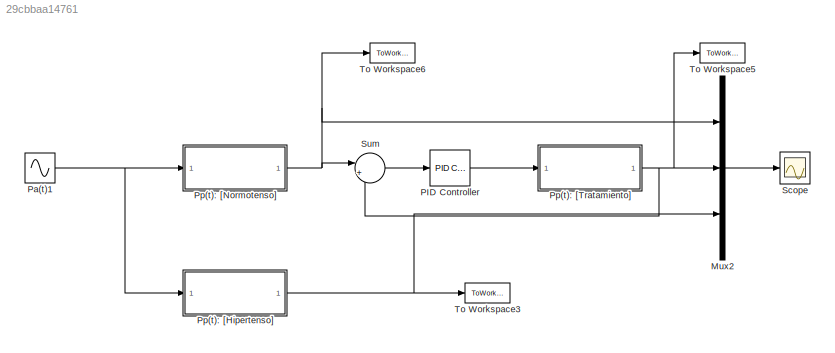
MODEL slx_29cbbaa14761
KIND model
CONFIG AbsTol = auto
CONFIG EnableMultiTasking = off
CONFIG FixedStep = auto
CONFIG MaxStep = auto
CONFIG MinStep = auto
CONFIG RelTol = 1e-3
CONFIG SampleTimeConstraint = Unconstrained
CONFIG SolverName = ode15s
CONFIG StartTime = 0.0
CONFIG StopTime = 15
BLOCK [Mux] Mux2
  DisplayOption = bar
  Inputs = 3
BLOCK [Reference] PID Controller  REF=slpidlib/PID Controller
  LibrarySourceBlock = simulink/Continuous/PID Controller
  SourceBlock = slpidlib/PID Controller
  SourceType = PID 1dof
BLOCK [Sin] Pa(t)1
  Bias = 0.8
  Frequency = (2*pi)*(95/60)
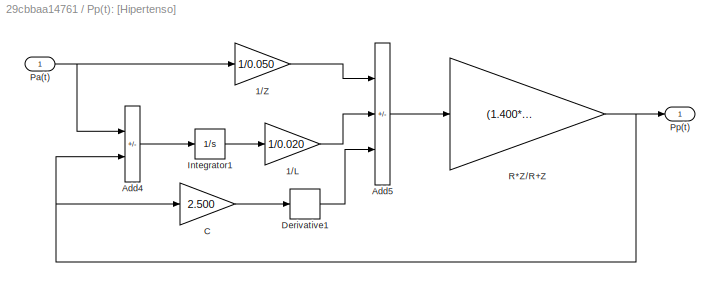
BLOCK [SubSystem] Pp(t): [Hipertenso]
BLOCK [Gain] Pp(t): [Hipertenso]/1//L
  Gain = 1/0.020
BLOCK [Gain] Pp(t): [Hipertenso]/1//Z
  Gain = 1/0.050
BLOCK [Sum] Pp(t): [Hipertenso]/Add4
  IconShape = rectangular
  Inputs = +-
BLOCK [Sum] Pp(t): [Hipertenso]/Add5
  IconShape = rectangular
  Inputs = ++-
BLOCK [Gain] Pp(t): [Hipertenso]/C
  Gain = 2.500
BLOCK [Derivative] Pp(t): [Hipertenso]/Derivative1
BLOCK [Integrator] Pp(t): [Hipertenso]/Integrator1
BLOCK [Inport] Pp(t): [Hipertenso]/Pa(t)
BLOCK [Outport] Pp(t): [Hipertenso]/Pp(t)
  VectorParamsAs1DForOutWhenUnconnected = off
BLOCK [Gain] Pp(t): [Hipertenso]/R*Z//R+Z
  Gain = (1.400*0.050)/(1.400+0.050)
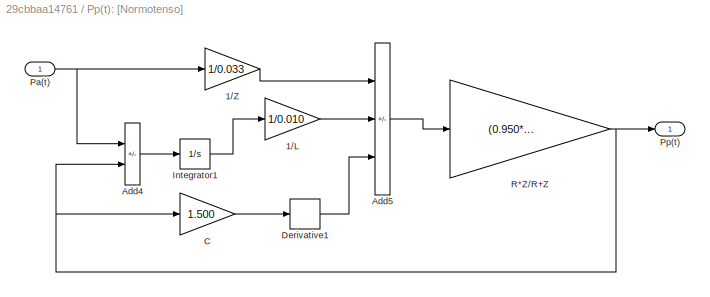
BLOCK [SubSystem] Pp(t): [Normotenso]
BLOCK [Gain] Pp(t): [Normotenso]/1//L
  Gain = 1/0.010
BLOCK [Gain] Pp(t): [Normotenso]/1//Z
  Gain = 1/0.033
BLOCK [Sum] Pp(t): [Normotenso]/Add4
  IconShape = rectangular
  Inputs = +-
BLOCK [Sum] Pp(t): [Normotenso]/Add5
  IconShape = rectangular
  Inputs = ++-
BLOCK [Gain] Pp(t): [Normotenso]/C
  Gain = 1.500
BLOCK [Derivative] Pp(t): [Normotenso]/Derivative1
BLOCK [Integrator] Pp(t): [Normotenso]/Integrator1
BLOCK [Inport] Pp(t): [Normotenso]/Pa(t)
BLOCK [Outport] Pp(t): [Normotenso]/Pp(t)
  VectorParamsAs1DForOutWhenUnconnected = off
BLOCK [Gain] Pp(t): [Normotenso]/R*Z//R+Z
  Gain = (0.950*0.033)/(0.950+0.033)
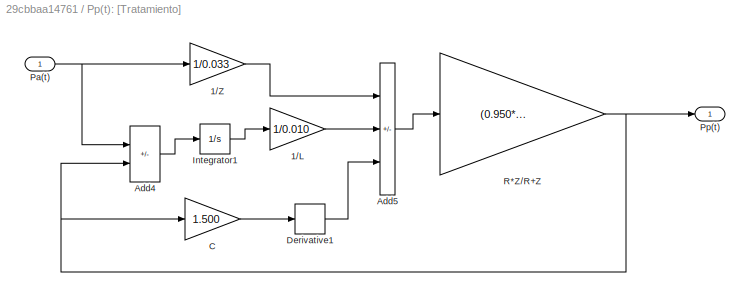
BLOCK [SubSystem] Pp(t): [Tratamiento]
BLOCK [Gain] Pp(t): [Tratamiento]/1//L
  Gain = 1/0.010
BLOCK [Gain] Pp(t): [Tratamiento]/1//Z
  Gain = 1/0.033
BLOCK [Sum] Pp(t): [Tratamiento]/Add4
  IconShape = rectangular
  Inputs = +-
BLOCK [Sum] Pp(t): [Tratamiento]/Add5
  IconShape = rectangular
  Inputs = ++-
BLOCK [Gain] Pp(t): [Tratamiento]/C
  Gain = 1.500
BLOCK [Derivative] Pp(t): [Tratamiento]/Derivative1
BLOCK [Integrator] Pp(t): [Tratamiento]/Integrator1
BLOCK [Inport] Pp(t): [Tratamiento]/Pa(t)
BLOCK [Outport] Pp(t): [Tratamiento]/Pp(t)
  VectorParamsAs1DForOutWhenUnconnected = off
BLOCK [Gain] Pp(t): [Tratamiento]/R*Z//R+Z
  Gain = (0.950*0.033)/(0.950+0.033)
BLOCK [Scope] Scope
  Floating = off
  NumInputPorts = 1
  ScopeSpecificationString = Simulink.scopes.TimeScopeBlockCfg('CurrentConfiguration', extmgr.ConfigurationSet(extmgr.Configuration('Core','General UI',true,'FigureColor',[1 1 1]),extmgr.Configuration('Core','Source UI',true),extmgr.Configuration('Sources','WiredSimulink',true,'DataLoggingVariableName','ScopeData1'),extmgr.Configuration('Visuals','Time Domain',true,'SerializedDisplays',{struct('MinYLimReal','-0.47209','MaxYLi...<+1944ch>
BLOCK [Sum] Sum
  Inputs = |+-
BLOCK [ToWorkspace] To Workspace3
  MaxDataPoints = inf
  SampleTime = -1
  VariableName = Ppx
BLOCK [ToWorkspace] To Workspace5
  MaxDataPoints = inf
  SampleTime = -1
  VariableName = Ppz
BLOCK [ToWorkspace] To Workspace6
  MaxDataPoints = inf
  SampleTime = -1
  VariableName = Ppy
LINE Mux2:1 -> Scope:1
LINE PID Controller:1 -> Pp(t): [Tratamiento]:1
NET Pa(t)1:1 -> Pp(t): [Hipertenso]:1, Pp(t): [Normotenso]:1
LINE Pp(t): [Hipertenso]/1//L:1 -> Pp(t): [Hipertenso]/Add5:2
LINE Pp(t): [Hipertenso]/1//Z:1 -> Pp(t): [Hipertenso]/Add5:1
LINE Pp(t): [Hipertenso]/Add4:1 -> Pp(t): [Hipertenso]/Integrator1:1
LINE Pp(t): [Hipertenso]/Add5:1 -> Pp(t): [Hipertenso]/R*Z//R+Z:1
LINE Pp(t): [Hipertenso]/C:1 -> Pp(t): [Hipertenso]/Derivative1:1
LINE Pp(t): [Hipertenso]/Derivative1:1 -> Pp(t): [Hipertenso]/Add5:3
LINE Pp(t): [Hipertenso]/Integrator1:1 -> Pp(t): [Hipertenso]/1//L:1
NET Pp(t): [Hipertenso]/Pa(t):1 -> Pp(t): [Hipertenso]/1//Z:1, Pp(t): [Hipertenso]/Add4:1
NET Pp(t): [Hipertenso]/R*Z//R+Z:1 -> Pp(t): [Hipertenso]/Add4:2, Pp(t): [Hipertenso]/C:1, Pp(t): [Hipertenso]/Pp(t):1
NET Pp(t): [Hipertenso]:1 -> Mux2:3, To Workspace3:1
LINE Pp(t): [Normotenso]/1//L:1 -> Pp(t): [Normotenso]/Add5:2
LINE Pp(t): [Normotenso]/1//Z:1 -> Pp(t): [Normotenso]/Add5:1
LINE Pp(t): [Normotenso]/Add4:1 -> Pp(t): [Normotenso]/Integrator1:1
LINE Pp(t): [Normotenso]/Add5:1 -> Pp(t): [Normotenso]/R*Z//R+Z:1
LINE Pp(t): [Normotenso]/C:1 -> Pp(t): [Normotenso]/Derivative1:1
LINE Pp(t): [Normotenso]/Derivative1:1 -> Pp(t): [Normotenso]/Add5:3
LINE Pp(t): [Normotenso]/Integrator1:1 -> Pp(t): [Normotenso]/1//L:1
NET Pp(t): [Normotenso]/Pa(t):1 -> Pp(t): [Normotenso]/1//Z:1, Pp(t): [Normotenso]/Add4:1
NET Pp(t): [Normotenso]/R*Z//R+Z:1 -> Pp(t): [Normotenso]/Add4:2, Pp(t): [Normotenso]/C:1, Pp(t): [Normotenso]/Pp(t):1
NET Pp(t): [Normotenso]:1 -> Mux2:1, Sum:1, To Workspace6:1
LINE Pp(t): [Tratamiento]/1//L:1 -> Pp(t): [Tratamiento]/Add5:2
LINE Pp(t): [Tratamiento]/1//Z:1 -> Pp(t): [Tratamiento]/Add5:1
LINE Pp(t): [Tratamiento]/Add4:1 -> Pp(t): [Tratamiento]/Integrator1:1
LINE Pp(t): [Tratamiento]/Add5:1 -> Pp(t): [Tratamiento]/R*Z//R+Z:1
LINE Pp(t): [Tratamiento]/C:1 -> Pp(t): [Tratamiento]/Derivative1:1
LINE Pp(t): [Tratamiento]/Derivative1:1 -> Pp(t): [Tratamiento]/Add5:3
LINE Pp(t): [Tratamiento]/Integrator1:1 -> Pp(t): [Tratamiento]/1//L:1
NET Pp(t): [Tratamiento]/Pa(t):1 -> Pp(t): [Tratamiento]/1//Z:1, Pp(t): [Tratamiento]/Add4:1
NET Pp(t): [Tratamiento]/R*Z//R+Z:1 -> Pp(t): [Tratamiento]/Add4:2, Pp(t): [Tratamiento]/C:1, Pp(t): [Tratamiento]/Pp(t):1
NET Pp(t): [Tratamiento]:1 -> Mux2:2, Sum:2, To Workspace5:1
LINE Sum:1 -> PID Controller:1
note: NET lines group one-source signal fan-out (src -> all destinations, sorted); 1:1 wires keep LINE
